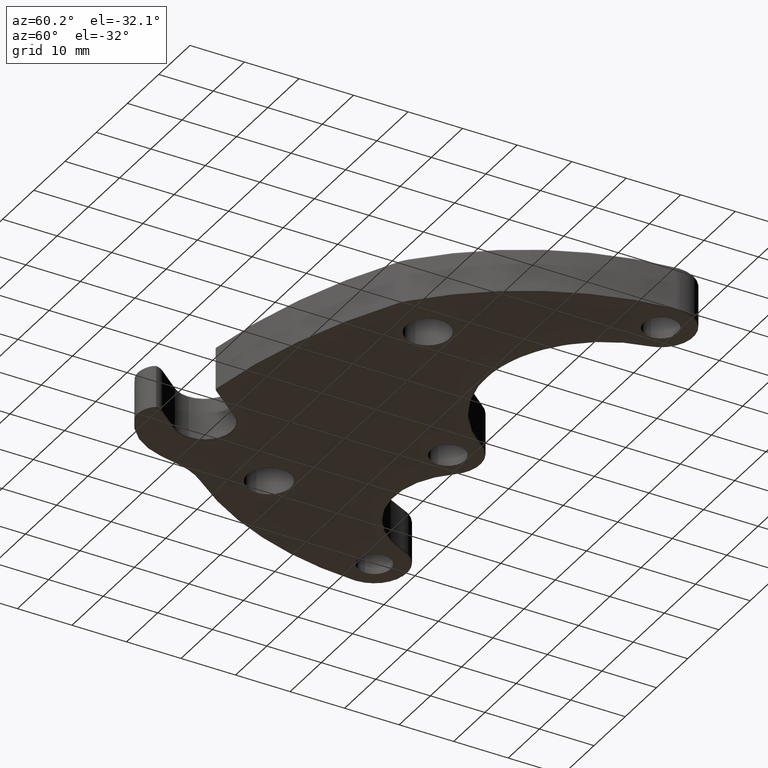
[diagram: clean part render]
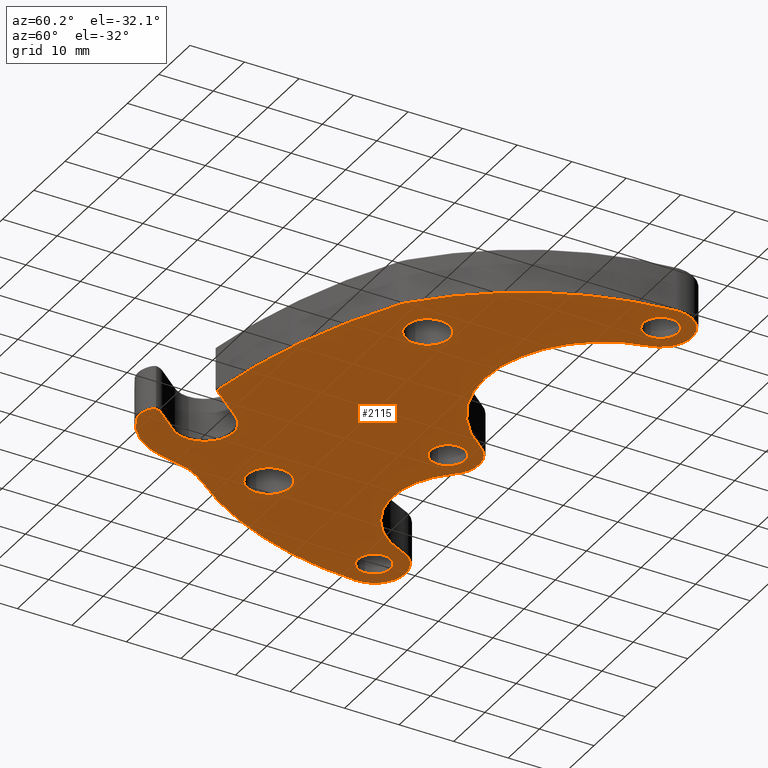
[diagram: same view with one face highlighted and labeled with its STEP entity id]
A machine part, auxiliary view. The second image highlights one B-rep face of the part: STEP entity #2115.
In plain terms, the highlighted planar face has unit normal (0, 0, 1).
Its self-contained STEP definition (entity closure, byte-faithful):
#2 = FACE_BOUND ( 'NONE', #2904, .T. ) ;
#4 = DIRECTION ( 'NONE',  ( -9.013352139732279557E-31, 3.389636702121541407E-30, 1.000000000000000000 ) ) ;
#13 = DIRECTION ( 'NONE',  ( 9.013352139732279557E-31, -3.389636702121541407E-30, -1.000000000000000000 ) ) ;
#19 = CARTESIAN_POINT ( 'NONE',  ( 0.7015516112939952365, -6.595014677783987977, 6.829619984160633394E-17 ) ) ;
#27 = EDGE_CURVE ( 'NONE', #2143, #2512, #2039, .T. ) ;
#28 = VERTEX_POINT ( 'NONE', #78 ) ;
#45 = EDGE_LOOP ( 'NONE', ( #1830, #2999 ) ) ;
#49 = DIRECTION ( 'NONE',  ( 1.000000000000000000, 0.0000000000000000000, -7.381085299762806448E-31 ) ) ;
#62 = DIRECTION ( 'NONE',  ( 1.000000000000000000, 0.0000000000000000000, -7.279105301621054355E-31 ) ) ;
#64 = CARTESIAN_POINT ( 'NONE',  ( 1.015571213089875302, -6.811577385490915404, -2.426368433873683033E-31 ) ) ;
#69 = DIRECTION ( 'NONE',  ( -0.2138877119970290508, 0.9768582531036301697, 3.685459541579415229E-30 ) ) ;
#78 = CARTESIAN_POINT ( 'NONE',  ( 2.989237834518999382, -6.028666468091001818, 6.829619984160815818E-17 ) ) ;
#82 = CARTESIAN_POINT ( 'NONE',  ( 1.199773776286716664, -7.059234727620887995, -3.032960542342103792E-31 ) ) ;
#108 = FACE_OUTER_BOUND ( 'NONE', #1923, .T. ) ;
#110 = VERTEX_POINT ( 'NONE', #702 ) ;
#118 = CARTESIAN_POINT ( 'NONE',  ( 0.2916489499379992245, -4.959328140698997522, -2.426368433873683033E-31 ) ) ;
#161 = CIRCLE ( 'NONE', #3116, 3.970996278275079394 ) ;
#167 = AXIS2_PLACEMENT_3D ( 'NONE', #1447, #3366, #1724 ) ;
#206 = VERTEX_POINT ( 'NONE', #2419 ) ;
#214 = AXIS2_PLACEMENT_3D ( 'NONE', #1493, #2874, #1241 ) ;
#216 = VECTOR ( 'NONE', #69, 39.37007874015748854 ) ;
#227 = ORIENTED_EDGE ( 'NONE', *, *, #2424, .T. ) ;
#235 = ORIENTED_EDGE ( 'NONE', *, *, #3307, .T. ) ;
#246 = EDGE_CURVE ( 'NONE', #1765, #1914, #701, .T. ) ;
#281 = EDGE_CURVE ( 'NONE', #345, #626, #2246, .T. ) ;
#283 = CARTESIAN_POINT ( 'NONE',  ( 1.110204142973997277, -7.068025676842993654, 6.829619984160633394E-17 ) ) ;
#300 = CARTESIAN_POINT ( 'NONE',  ( 0.9701242163660009910, -6.019208214938992718, 6.829619984160840470E-17 ) ) ;
#305 = CIRCLE ( 'NONE', #1692, 0.2260004092273209253 ) ;
#307 = CIRCLE ( 'NONE', #2207, 0.2260000000001487486 ) ;
#311 = CIRCLE ( 'NONE', #748, 0.5600000000004308198 ) ;
#332 = CARTESIAN_POINT ( 'NONE',  ( 1.362138702906545262, -6.571722728921231216, 6.829619984160645720E-17 ) ) ;
#343 = CIRCLE ( 'NONE', #2722, 0.4900000000001688005 ) ;
#344 = ORIENTED_EDGE ( 'NONE', *, *, #2721, .T. ) ;
#345 = VERTEX_POINT ( 'NONE', #2458 ) ;
#363 = ORIENTED_EDGE ( 'NONE', *, *, #3263, .T. ) ;
#373 = CARTESIAN_POINT ( 'NONE',  ( 0.7360092017162263023, -6.752387821250541933, -3.639552650810524550E-31 ) ) ;
#395 = DIRECTION ( 'NONE',  ( 1.000000000000000000, 0.0000000000000000000, -7.534237942442840383E-31 ) ) ;
#410 = EDGE_CURVE ( 'NONE', #467, #3143, #1347, .T. ) ;
#411 = VERTEX_POINT ( 'NONE', #2432 ) ;
#419 = VERTEX_POINT ( 'NONE', #3532 ) ;
#423 = CIRCLE ( 'NONE', #1015, 0.1179999999999998689 ) ;
#455 = EDGE_LOOP ( 'NONE', ( #793, #2020 ) ) ;
#467 = VERTEX_POINT ( 'NONE', #300 ) ;
#475 = AXIS2_PLACEMENT_3D ( 'NONE', #2717, #1068, #2996 ) ;
#502 = EDGE_CURVE ( 'NONE', #739, #2005, #161, .T. ) ;
#550 = DIRECTION ( 'NONE',  ( 9.013352139732279557E-31, -3.389636702121541407E-30, -1.000000000000000000 ) ) ;
#605 = CARTESIAN_POINT ( 'NONE',  ( 2.531895124107999884, -4.586289056708000800, -2.426368433873683033E-31 ) ) ;
#626 = VERTEX_POINT ( 'NONE', #1428 ) ;
#652 = PLANE ( 'NONE',  #3568 ) ;
#663 = VERTEX_POINT ( 'NONE', #2188 ) ;
#664 = LINE ( 'NONE', #3082, #2951 ) ;
#679 = CARTESIAN_POINT ( 'NONE',  ( 3.377232241933934898, -4.744419247455192057, 6.829619984160633394E-17 ) ) ;
#689 = DIRECTION ( 'NONE',  ( 9.013352139732279557E-31, -3.389636702121541407E-30, -1.000000000000000000 ) ) ;
#701 = CIRCLE ( 'NONE', #1911, 0.5099999999997942846 ) ;
#702 = CARTESIAN_POINT ( 'NONE',  ( 3.474379804508997083, -4.785974383443996949, 6.829619984160815818E-17 ) ) ;
#739 = VERTEX_POINT ( 'NONE', #2254 ) ;
#748 = AXIS2_PLACEMENT_3D ( 'NONE', #2426, #765, #2699 ) ;
#757 = FACE_BOUND ( 'NONE', #455, .T. ) ;
#765 = DIRECTION ( 'NONE',  ( -9.013352139732279557E-31, 3.389636702121541407E-30, 1.000000000000000000 ) ) ;
#773 = CIRCLE ( 'NONE', #2257, 0.1550000000001662270 ) ;
#793 = ORIENTED_EDGE ( 'NONE', *, *, #985, .T. ) ;
#798 = EDGE_CURVE ( 'NONE', #2306, #1938, #773, .T. ) ;
#805 = CARTESIAN_POINT ( 'NONE',  ( 2.831737834518999186, -6.028666468091001818, 6.829619984160621068E-17 ) ) ;
#812 = DIRECTION ( 'NONE',  ( 1.000000000000000000, 0.0000000000000000000, -7.582401355858318032E-31 ) ) ;
#823 = ORIENTED_EDGE ( 'NONE', *, *, #3249, .T. ) ;
#826 = CARTESIAN_POINT ( 'NONE',  ( 3.599379804508997083, -4.785974383443996949, 6.829619984160633394E-17 ) ) ;
#839 = ORIENTED_EDGE ( 'NONE', *, *, #502, .T. ) ;
#872 = ORIENTED_EDGE ( 'NONE', *, *, #3435, .T. ) ;
#891 = DIRECTION ( 'NONE',  ( 1.000000000000000000, 0.0000000000000000000, -7.534237942442870160E-31 ) ) ;
#906 = ORIENTED_EDGE ( 'NONE', *, *, #1634, .T. ) ;
#916 = AXIS2_PLACEMENT_3D ( 'NONE', #3379, #1736, #62 ) ;
#954 = CARTESIAN_POINT ( 'NONE',  ( 1.634050173497997527, -5.197247596595002683, 6.829619984160633394E-17 ) ) ;
#962 = CARTESIAN_POINT ( 'NONE',  ( 1.591496346171999976, -4.629130455484000706, -2.426368433873683033E-31 ) ) ;
#963 = DIRECTION ( 'NONE',  ( 1.000000000000000000, 0.0000000000000000000, -7.534237942442872788E-31 ) ) ;
#966 = LINE ( 'NONE', #373, #216 ) ;
#976 = CARTESIAN_POINT ( 'NONE',  ( 0.5042765048993568255, -4.882741439037748599, -1.819776325405262275E-31 ) ) ;
#985 = EDGE_CURVE ( 'NONE', #626, #345, #423, .T. ) ;
#987 = DIRECTION ( 'NONE',  ( -9.013352139732279557E-31, 3.389636702121541407E-30, 1.000000000000000000 ) ) ;
#1007 = ORIENTED_EDGE ( 'NONE', *, *, #1841, .T. ) ;
#1015 = AXIS2_PLACEMENT_3D ( 'NONE', #1957, #4, #1685 ) ;
#1045 = CIRCLE ( 'NONE', #2587, 0.1574999999999998901 ) ;
#1060 = EDGE_CURVE ( 'NONE', #1798, #1494, #2195, .T. ) ;
#1061 = CIRCLE ( 'NONE', #1587, 0.09000000000000914213 ) ;
#1068 = DIRECTION ( 'NONE',  ( -9.013352139732279557E-31, 3.389636702121541407E-30, 1.000000000000000000 ) ) ;
#1082 = DIRECTION ( 'NONE',  ( 1.000000000000000000, 0.0000000000000000000, -7.702756932932319208E-31 ) ) ;
#1096 = AXIS2_PLACEMENT_3D ( 'NONE', #954, #2264, #2302 ) ;
#1103 = DIRECTION ( 'NONE',  ( 9.013352139732279557E-31, -3.389636702121541407E-30, -1.000000000000000000 ) ) ;
#1104 = AXIS2_PLACEMENT_3D ( 'NONE', #2827, #1201, #3119 ) ;
#1146 = CIRCLE ( 'NONE', #1665, 0.1249999999999999029 ) ;
#1158 = DIRECTION ( 'NONE',  ( -0.6357789690103352598, 0.7718711696676816558, 3.593014904248827908E-30 ) ) ;
#1191 = VERTEX_POINT ( 'NONE', #2862 ) ;
#1201 = DIRECTION ( 'NONE',  ( 9.013352139732279557E-31, -3.389636702121541407E-30, -1.000000000000000000 ) ) ;
#1202 = CARTESIAN_POINT ( 'NONE',  ( 0.5986759796335521244, -6.381885593765205478, 6.829619984160627231E-17 ) ) ;
#1208 = EDGE_CURVE ( 'NONE', #1494, #1831, #305, .T. ) ;
#1213 = CARTESIAN_POINT ( 'NONE',  ( 1.214669745736998818, -6.647582842372000478, -3.639552650810524550E-31 ) ) ;
#1231 = CARTESIAN_POINT ( 'NONE',  ( 1.634050173497997527, -5.197247596595002683, 6.829619984160633394E-17 ) ) ;
#1241 = DIRECTION ( 'NONE',  ( 1.000000000000000000, -2.417560218589208792E-15, -7.381085299762806448E-31 ) ) ;
#1244 = DIRECTION ( 'NONE',  ( 1.000000000000000000, 0.0000000000000000000, -7.534237942442871036E-31 ) ) ;
#1257 = VERTEX_POINT ( 'NONE', #332 ) ;
#1259 = CARTESIAN_POINT ( 'NONE',  ( 0.2916489499380003347, -4.959328140699002851, -2.426368433873683033E-31 ) ) ;
#1265 = DIRECTION ( 'NONE',  ( 9.013352139732279557E-31, -3.389636702121541407E-30, -1.000000000000000000 ) ) ;
#1267 = CARTESIAN_POINT ( 'NONE',  ( 1.634050173497997527, -5.197247596595002683, 6.829619984160633394E-17 ) ) ;
#1272 = CIRCLE ( 'NONE', #1915, 0.1249999999999999029 ) ;
#1297 = ORIENTED_EDGE ( 'NONE', *, *, #2159, .T. ) ;
#1302 = CARTESIAN_POINT ( 'NONE',  ( 1.179672548244128594, -7.010805569632116097, 6.829619984160621068E-17 ) ) ;
#1310 = CARTESIAN_POINT ( 'NONE',  ( 0.7360092017159118871, -6.752387821249134170, -3.639552650810524550E-31 ) ) ;
#1317 = CIRCLE ( 'NONE', #167, 0.2099999999999994094 ) ;
#1347 = CIRCLE ( 'NONE', #1581, 0.1574999999999998901 ) ;
#1353 = DIRECTION ( 'NONE',  ( 1.000000000000000000, 8.964477929329919907E-15, -7.534237942443171440E-31 ) ) ;
#1358 = AXIS2_PLACEMENT_3D ( 'NONE', #1267, #2632, #3182 ) ;
#1380 = CARTESIAN_POINT ( 'NONE',  ( 0.2033539022110241179, -6.704097410900983434, 6.829619984160633394E-17 ) ) ;
#1388 = EDGE_CURVE ( 'NONE', #1938, #2082, #343, .T. ) ;
#1398 = EDGE_CURVE ( 'NONE', #1914, #2872, #3197, .T. ) ;
#1428 = CARTESIAN_POINT ( 'NONE',  ( 0.1736489499380003410, -4.959328140698997522, 1.637798692864733201E-30 ) ) ;
#1447 = CARTESIAN_POINT ( 'NONE',  ( 1.200045757276003267, -6.705236312412997002, -3.032960542342103792E-31 ) ) ;
#1493 = CARTESIAN_POINT ( 'NONE',  ( 3.599379396524203134, -4.785974351574442842, 6.829619984160633394E-17 ) ) ;
#1494 = VERTEX_POINT ( 'NONE', #2435 ) ;
#1505 = DIRECTION ( 'NONE',  ( 1.000000000000000000, 0.0000000000000000000, -7.279105301621054355E-31 ) ) ;
#1526 = ORIENTED_EDGE ( 'NONE', *, *, #1979, .T. ) ;
#1537 = ORIENTED_EDGE ( 'NONE', *, *, #410, .T. ) ;
#1540 = AXIS2_PLACEMENT_3D ( 'NONE', #805, #2731, #1082 ) ;
#1573 = DIRECTION ( 'NONE',  ( -9.013352139732279557E-31, 3.389636702121541407E-30, 1.000000000000000000 ) ) ;
#1581 = AXIS2_PLACEMENT_3D ( 'NONE', #1595, #1573, #2329 ) ;
#1587 = AXIS2_PLACEMENT_3D ( 'NONE', #2196, #550, #2486 ) ;
#1595 = CARTESIAN_POINT ( 'NONE',  ( 0.8126242163660009066, -6.019208214939001600, 6.829619984160633394E-17 ) ) ;
#1629 = DIRECTION ( 'NONE',  ( -9.013352139732279557E-31, 3.389636702121541407E-30, 1.000000000000000000 ) ) ;
#1631 = ORIENTED_EDGE ( 'NONE', *, *, #1060, .T. ) ;
#1634 = EDGE_CURVE ( 'NONE', #2082, #1765, #966, .T. ) ;
#1665 = AXIS2_PLACEMENT_3D ( 'NONE', #1231, #3151, #1505 ) ;
#1666 = EDGE_CURVE ( 'NONE', #3143, #467, #1045, .T. ) ;
#1685 = DIRECTION ( 'NONE',  ( 1.000000000000000000, 0.0000000000000000000, -7.534237942442872788E-31 ) ) ;
#1686 = DIRECTION ( 'NONE',  ( 1.000000000000000000, 0.0000000000000000000, -7.702756932932332345E-31 ) ) ;
#1692 = AXIS2_PLACEMENT_3D ( 'NONE', #3177, #689, #49 ) ;
#1695 = ORIENTED_EDGE ( 'NONE', *, *, #27, .T. ) ;
#1704 = CIRCLE ( 'NONE', #2400, 2.239999999999998437 ) ;
#1724 = DIRECTION ( 'NONE',  ( 1.000000000000000000, 0.0000000000000000000, -7.534237942442870160E-31 ) ) ;
#1736 = DIRECTION ( 'NONE',  ( -9.013352139732279557E-31, 3.389636702121541407E-30, 1.000000000000000000 ) ) ;
#1755 = CIRCLE ( 'NONE', #1540, 0.1575000000000001676 ) ;
#1765 = VERTEX_POINT ( 'NONE', #19 ) ;
#1798 = VERTEX_POINT ( 'NONE', #679 ) ;
#1830 = ORIENTED_EDGE ( 'NONE', *, *, #3174, .T. ) ;
#1831 = VERTEX_POINT ( 'NONE', #3032 ) ;
#1841 = EDGE_CURVE ( 'NONE', #110, #411, #1272, .T. ) ;
#1842 = CIRCLE ( 'NONE', #1358, 0.2260000000000316756 ) ;
#1857 = ORIENTED_EDGE ( 'NONE', *, *, #3420, .T. ) ;
#1864 = DIRECTION ( 'NONE',  ( 1.000000000000000000, -7.049930306222796428E-15, -7.534237942442720397E-31 ) ) ;
#1891 = DIRECTION ( 'NONE',  ( 1.000000000000000000, 0.0000000000000000000, -7.279105301621054355E-31 ) ) ;
#1911 = AXIS2_PLACEMENT_3D ( 'NONE', #1380, #2942, #812 ) ;
#1914 = VERTEX_POINT ( 'NONE', #1202 ) ;
#1915 = AXIS2_PLACEMENT_3D ( 'NONE', #826, #1629, #1891 ) ;
#1923 = EDGE_LOOP ( 'NONE', ( #227, #1695, #3172, #2648, #2690, #906, #2013, #3290, #1857, #344, #1526, #2250, #1631, #2898, #872, #235, #839, #3338, #823, #363 ) ) ;
#1938 = VERTEX_POINT ( 'NONE', #2009 ) ;
#1957 = CARTESIAN_POINT ( 'NONE',  ( 0.2916489499380003347, -4.959328140699002851, -2.426368433873683033E-31 ) ) ;
#1979 = EDGE_CURVE ( 'NONE', #663, #3469, #1842, .T. ) ;
#2005 = VERTEX_POINT ( 'NONE', #2576 ) ;
#2009 = CARTESIAN_POINT ( 'NONE',  ( 1.029771136131544251, -7.101358672673855565, -3.639552650810524550E-31 ) ) ;
#2010 = DIRECTION ( 'NONE',  ( 0.6357789690057004117, -0.7718711696714994908, -3.001369225333069404E-30 ) ) ;
#2013 = ORIENTED_EDGE ( 'NONE', *, *, #246, .T. ) ;
#2020 = ORIENTED_EDGE ( 'NONE', *, *, #281, .T. ) ;
#2039 = CIRCLE ( 'NONE', #2555, 0.09000000000000081546 ) ;
#2057 = DIRECTION ( 'NONE',  ( 9.013352139732279557E-31, -3.389636702121541407E-30, -1.000000000000000000 ) ) ;
#2074 = CARTESIAN_POINT ( 'NONE',  ( 1.820894506741506991, -5.070105219788043627, 6.829619984160639557E-17 ) ) ;
#2082 = VERTEX_POINT ( 'NONE', #1310 ) ;
#2096 = CARTESIAN_POINT ( 'NONE',  ( 2.674237834518998991, -6.028666468091001818, 6.829619984160791166E-17 ) ) ;
#2115 = ADVANCED_FACE ( 'NONE', ( #2226, #2, #108, #757, #2863, #2129 ), #652, .F. ) ;
#2129 = FACE_BOUND ( 'NONE', #3221, .T. ) ;
#2143 = VERTEX_POINT ( 'NONE', #1302 ) ;
#2159 = EDGE_CURVE ( 'NONE', #206, #1191, #3346, .T. ) ;
#2170 = ORIENTED_EDGE ( 'NONE', *, *, #3291, .T. ) ;
#2180 = VERTEX_POINT ( 'NONE', #3492 ) ;
#2188 = CARTESIAN_POINT ( 'NONE',  ( 1.460694679445896593, -5.052251483950678690, 1.365923996832129144E-16 ) ) ;
#2195 = CIRCLE ( 'NONE', #214, 0.2260004092273209253 ) ;
#2196 = CARTESIAN_POINT ( 'NONE',  ( 1.633396372994004198, -6.759486056917989316, -2.426368433873683033E-31 ) ) ;
#2201 = DIRECTION ( 'NONE',  ( 9.013352139732279557E-31, -3.389636702121541407E-30, -1.000000000000000000 ) ) ;
#2207 = AXIS2_PLACEMENT_3D ( 'NONE', #118, #2057, #395 ) ;
#2226 = FACE_BOUND ( 'NONE', #45, .T. ) ;
#2229 = CARTESIAN_POINT ( 'NONE',  ( 1.053930800481980068, -2.897121107430916886, -1.213184216936841517E-31 ) ) ;
#2240 = ORIENTED_EDGE ( 'NONE', *, *, #1666, .T. ) ;
#2246 = CIRCLE ( 'NONE', #3113, 0.1179999999999998689 ) ;
#2250 = ORIENTED_EDGE ( 'NONE', *, *, #2401, .T. ) ;
#2254 = CARTESIAN_POINT ( 'NONE',  ( 3.014406338389074680, -6.350430694962417633, -3.639552650810524550E-31 ) ) ;
#2256 = DIRECTION ( 'NONE',  ( -9.013352139732279557E-31, 3.389636702121541407E-30, 1.000000000000000000 ) ) ;
#2257 = AXIS2_PLACEMENT_3D ( 'NONE', #3248, #2456, #1864 ) ;
#2262 = CIRCLE ( 'NONE', #3144, 0.07193800000000018235 ) ;
#2264 = DIRECTION ( 'NONE',  ( -9.013352139732279557E-31, 3.389636702121541407E-30, 1.000000000000000000 ) ) ;
#2302 = DIRECTION ( 'NONE',  ( 1.000000000000000000, 0.0000000000000000000, -7.279105301621054355E-31 ) ) ;
#2306 = VERTEX_POINT ( 'NONE', #3580 ) ;
#2329 = DIRECTION ( 'NONE',  ( 1.000000000000000000, 0.0000000000000000000, -7.702756932932332345E-31 ) ) ;
#2400 = AXIS2_PLACEMENT_3D ( 'NONE', #962, #2876, #1244 ) ;
#2401 = EDGE_CURVE ( 'NONE', #3469, #1798, #3557, .T. ) ;
#2419 = CARTESIAN_POINT ( 'NONE',  ( 1.509050173497997527, -5.197247596595002683, 6.829619984160815818E-17 ) ) ;
#2424 = EDGE_CURVE ( 'NONE', #419, #2143, #3391, .T. ) ;
#2426 = CARTESIAN_POINT ( 'NONE',  ( 1.031141242856002949, -4.692969080938990345, 6.829619984160645720E-17 ) ) ;
#2432 = CARTESIAN_POINT ( 'NONE',  ( 3.724379804508996639, -4.785974383443996949, 6.829619984160840470E-17 ) ) ;
#2435 = CARTESIAN_POINT ( 'NONE',  ( 3.825379805751524032, -4.785974351574442842, 6.829619984160656814E-17 ) ) ;
#2449 = DIRECTION ( 'NONE',  ( 9.013352139732279557E-31, -3.389636702121541407E-30, -1.000000000000000000 ) ) ;
#2456 = DIRECTION ( 'NONE',  ( 9.013352139732279557E-31, -3.389636702121541407E-30, -1.000000000000000000 ) ) ;
#2458 = CARTESIAN_POINT ( 'NONE',  ( 0.4096489499380002730, -4.959328140698997522, 1.819776325405273748E-30 ) ) ;
#2463 = CARTESIAN_POINT ( 'NONE',  ( 2.441173973768015149, -4.880136360254994088, -2.426368433873683033E-31 ) ) ;
#2466 = CARTESIAN_POINT ( 'NONE',  ( 0.06580216865496321677, -4.967648680594864530, 6.829619984160639557E-17 ) ) ;
#2486 = DIRECTION ( 'NONE',  ( 1.000000000000000000, 8.499082646954621924E-14, -7.534237942445851423E-31 ) ) ;
#2512 = VERTEX_POINT ( 'NONE', #82 ) ;
#2542 = DIRECTION ( 'NONE',  ( -9.013352139732279557E-31, 3.389636702121541407E-30, 1.000000000000000000 ) ) ;
#2555 = AXIS2_PLACEMENT_3D ( 'NONE', #283, #1103, #3308 ) ;
#2576 = CARTESIAN_POINT ( 'NONE',  ( 1.581380289175202902, -6.832932139346927336, 6.829619984160616138E-17 ) ) ;
#2579 = AXIS2_PLACEMENT_3D ( 'NONE', #605, #2542, #891 ) ;
#2587 = AXIS2_PLACEMENT_3D ( 'NONE', #2810, #2256, #1686 ) ;
#2632 = DIRECTION ( 'NONE',  ( 9.013352139732279557E-31, -3.389636702121541407E-30, -1.000000000000000000 ) ) ;
#2645 = ORIENTED_EDGE ( 'NONE', *, *, #3411, .T. ) ;
#2648 = ORIENTED_EDGE ( 'NONE', *, *, #798, .T. ) ;
#2658 = VECTOR ( 'NONE', #2010, 39.37007874015748143 ) ;
#2690 = ORIENTED_EDGE ( 'NONE', *, *, #1388, .T. ) ;
#2699 = DIRECTION ( 'NONE',  ( 1.000000000000000000, 0.0000000000000000000, -7.582401355849425042E-31 ) ) ;
#2708 = CARTESIAN_POINT ( 'NONE',  ( 0.6551242163660009332, -6.019208214938992718, 6.829619984160815818E-17 ) ) ;
#2717 = CARTESIAN_POINT ( 'NONE',  ( 2.831737834518999186, -6.028666468091001818, 6.829619984160621068E-17 ) ) ;
#2721 = EDGE_CURVE ( 'NONE', #3466, #663, #311, .T. ) ;
#2722 = AXIS2_PLACEMENT_3D ( 'NONE', #3267, #13, #2730 ) ;
#2730 = DIRECTION ( 'NONE',  ( 1.000000000000000000, 4.460159989654403473E-15, -7.534237942442992774E-31 ) ) ;
#2731 = DIRECTION ( 'NONE',  ( -9.013352139732279557E-31, 3.389636702121541407E-30, 1.000000000000000000 ) ) ;
#2749 = DIRECTION ( 'NONE',  ( 1.000000000000000000, -3.439751390110749444E-15, -7.534237942442751926E-31 ) ) ;
#2806 = CIRCLE ( 'NONE', #475, 0.1575000000000001676 ) ;
#2810 = CARTESIAN_POINT ( 'NONE',  ( 0.8126242163660009066, -6.019208214939001600, 6.829619984160633394E-17 ) ) ;
#2827 = CARTESIAN_POINT ( 'NONE',  ( 2.831737834518999186, -6.028666468091001818, 6.829619984160621068E-17 ) ) ;
#2862 = CARTESIAN_POINT ( 'NONE',  ( 1.759050173497997305, -5.197247596595002683, 6.829619984160840470E-17 ) ) ;
#2863 = FACE_BOUND ( 'NONE', #3180, .T. ) ;
#2864 = VERTEX_POINT ( 'NONE', #3285 ) ;
#2872 = VERTEX_POINT ( 'NONE', #2466 ) ;
#2874 = DIRECTION ( 'NONE',  ( 9.013352139732279557E-31, -3.389636702121541407E-30, -1.000000000000000000 ) ) ;
#2876 = DIRECTION ( 'NONE',  ( 9.013352139732279557E-31, -3.389636702121541407E-30, -1.000000000000000000 ) ) ;
#2898 = ORIENTED_EDGE ( 'NONE', *, *, #1208, .T. ) ;
#2904 = EDGE_LOOP ( 'NONE', ( #1297, #2645 ) ) ;
#2909 = CARTESIAN_POINT ( 'NONE',  ( 1.136132550322998869, -7.025695642931002460, -2.426368433873683033E-31 ) ) ;
#2916 = DIRECTION ( 'NONE',  ( 7.534237942442868409E-31, 3.389636702121541407E-30, 1.000000000000000000 ) ) ;
#2942 = DIRECTION ( 'NONE',  ( -9.013352139732279557E-31, 3.389636702121541407E-30, 1.000000000000000000 ) ) ;
#2951 = VECTOR ( 'NONE', #1158, 39.37007874015748854 ) ;
#2996 = DIRECTION ( 'NONE',  ( 1.000000000000000000, 0.0000000000000000000, -7.702756932932319208E-31 ) ) ;
#2999 = ORIENTED_EDGE ( 'NONE', *, *, #3498, .T. ) ;
#3009 = VERTEX_POINT ( 'NONE', #2096 ) ;
#3032 = CARTESIAN_POINT ( 'NONE',  ( 3.824693439853333210, -4.803574546164178116, -1.819776325405262275E-31 ) ) ;
#3082 = CARTESIAN_POINT ( 'NONE',  ( 1.339757104351120054, -6.544550218507906081, 6.829619984160621068E-17 ) ) ;
#3100 = AXIS2_PLACEMENT_3D ( 'NONE', #2463, #2449, #1353 ) ;
#3113 = AXIS2_PLACEMENT_3D ( 'NONE', #1259, #987, #963 ) ;
#3116 = AXIS2_PLACEMENT_3D ( 'NONE', #2229, #2201, #2749 ) ;
#3119 = DIRECTION ( 'NONE',  ( 1.000000000000000000, -2.953349182336585400E-15, -7.582401355847149684E-31 ) ) ;
#3143 = VERTEX_POINT ( 'NONE', #2708 ) ;
#3144 = AXIS2_PLACEMENT_3D ( 'NONE', #2909, #1265, #3179 ) ;
#3151 = DIRECTION ( 'NONE',  ( -9.013352139732279557E-31, 3.389636702121541407E-30, 1.000000000000000000 ) ) ;
#3172 = ORIENTED_EDGE ( 'NONE', *, *, #3478, .T. ) ;
#3174 = EDGE_CURVE ( 'NONE', #3009, #28, #1755, .T. ) ;
#3177 = CARTESIAN_POINT ( 'NONE',  ( 3.599379396524203134, -4.785974351574442842, 6.829619984160633394E-17 ) ) ;
#3179 = DIRECTION ( 'NONE',  ( 1.000000000000000000, 0.0000000000000000000, -7.534237942443056708E-31 ) ) ;
#3180 = EDGE_LOOP ( 'NONE', ( #1007, #2170 ) ) ;
#3182 = DIRECTION ( 'NONE',  ( 1.000000000000000000, -9.670258384650903582E-15, -7.381098664990810484E-31 ) ) ;
#3190 = DIRECTION ( 'NONE',  ( 1.000000000000000000, 1.110223024625157280E-16, -7.534237942442871912E-31 ) ) ;
#3197 = CIRCLE ( 'NONE', #3100, 2.376983302158012457 ) ;
#3221 = EDGE_LOOP ( 'NONE', ( #2240, #1537 ) ) ;
#3248 = CARTESIAN_POINT ( 'NONE',  ( 1.088259471823002533, -6.957817338598995427, -3.639552650810524550E-31 ) ) ;
#3249 = EDGE_CURVE ( 'NONE', #2180, #1257, #664, .T. ) ;
#3263 = EDGE_CURVE ( 'NONE', #1257, #419, #1317, .T. ) ;
#3267 = CARTESIAN_POINT ( 'NONE',  ( 1.214669745736998818, -6.647582842372000478, -3.639552650810524550E-31 ) ) ;
#3285 = CARTESIAN_POINT ( 'NONE',  ( 3.077133209218181342, -6.305580010692344750, -2.426368433873683033E-31 ) ) ;
#3290 = ORIENTED_EDGE ( 'NONE', *, *, #1398, .T. ) ;
#3291 = EDGE_CURVE ( 'NONE', #411, #110, #3423, .T. ) ;
#3307 = EDGE_CURVE ( 'NONE', #2864, #739, #3601, .T. ) ;
#3308 = DIRECTION ( 'NONE',  ( 1.000000000000000000, 6.070773319253863043E-14, -7.582401355855191385E-31 ) ) ;
#3338 = ORIENTED_EDGE ( 'NONE', *, *, #3569, .T. ) ;
#3346 = CIRCLE ( 'NONE', #1096, 0.1249999999999999029 ) ;
#3366 = DIRECTION ( 'NONE',  ( -9.013352139732279557E-31, 3.389636702121541407E-30, 1.000000000000000000 ) ) ;
#3379 = CARTESIAN_POINT ( 'NONE',  ( 3.599379804508997083, -4.785974383443996949, 6.829619984160633394E-17 ) ) ;
#3391 = LINE ( 'NONE', #64, #2658 ) ;
#3411 = EDGE_CURVE ( 'NONE', #1191, #206, #1146, .T. ) ;
#3420 = EDGE_CURVE ( 'NONE', #2872, #3466, #307, .T. ) ;
#3423 = CIRCLE ( 'NONE', #916, 0.1249999999999999029 ) ;
#3435 = EDGE_CURVE ( 'NONE', #1831, #2864, #1704, .T. ) ;
#3466 = VERTEX_POINT ( 'NONE', #976 ) ;
#3469 = VERTEX_POINT ( 'NONE', #2074 ) ;
#3478 = EDGE_CURVE ( 'NONE', #2512, #2306, #2262, .T. ) ;
#3492 = CARTESIAN_POINT ( 'NONE',  ( 1.563927967724042301, -6.816706164129091583, -3.639552650810524550E-31 ) ) ;
#3498 = EDGE_CURVE ( 'NONE', #28, #3009, #2806, .T. ) ;
#3532 = CARTESIAN_POINT ( 'NONE',  ( 1.037952811645417528, -6.838749895904718379, -2.426368433873683033E-31 ) ) ;
#3557 = CIRCLE ( 'NONE', #2579, 0.8599999753215294973 ) ;
#3568 = AXIS2_PLACEMENT_3D ( 'NONE', #1213, #2916, #3190 ) ;
#3569 = EDGE_CURVE ( 'NONE', #2005, #2180, #1061, .T. ) ;
#3580 = CARTESIAN_POINT ( 'NONE',  ( 1.177594271942233872, -7.084483409382408503, 6.829619984160633394E-17 ) ) ;
#3601 = CIRCLE ( 'NONE', #1104, 0.3700000000003957346 ) ;